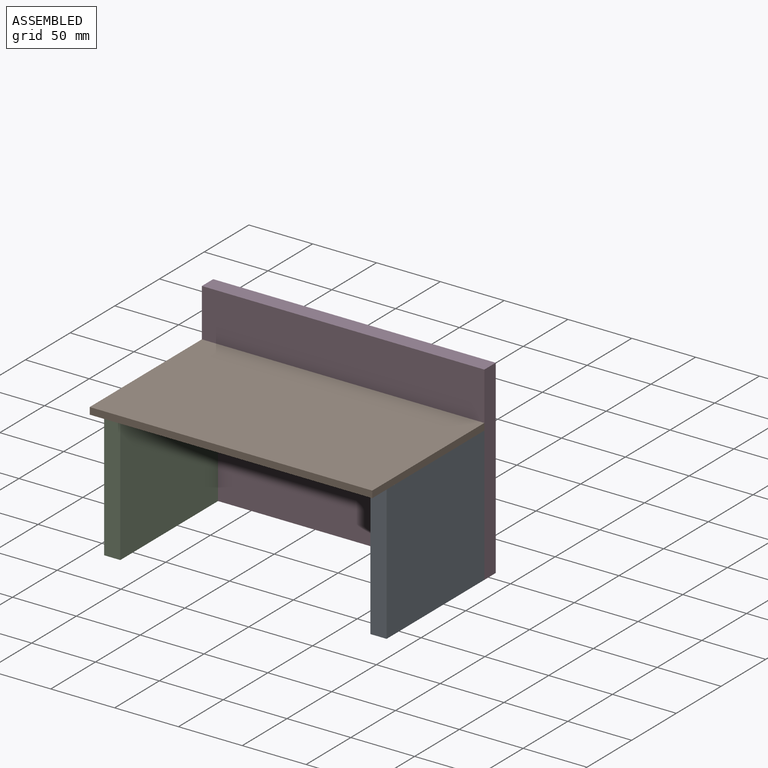
[diagram: assembled view]
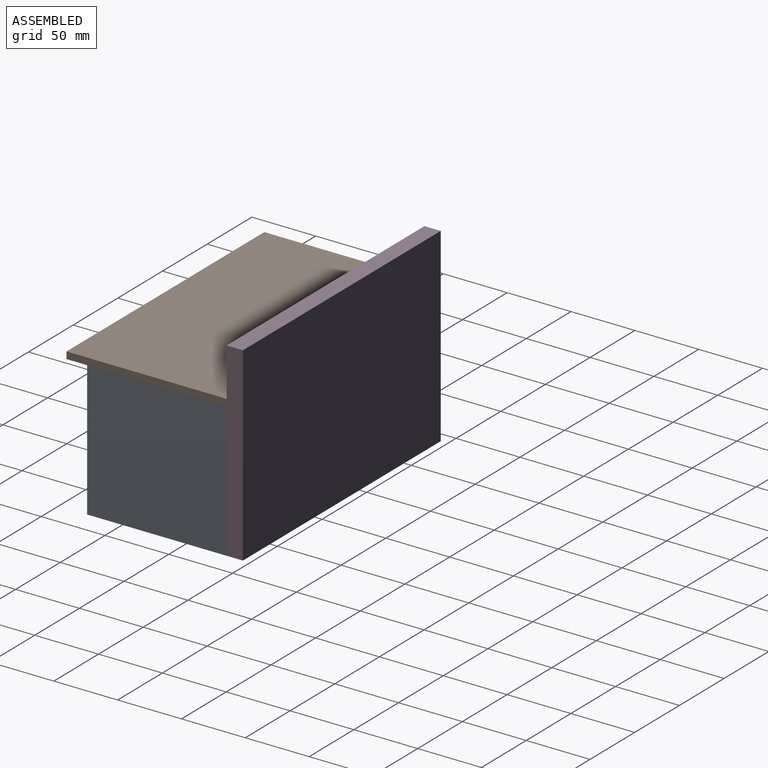
[diagram: assembled view, second angle]
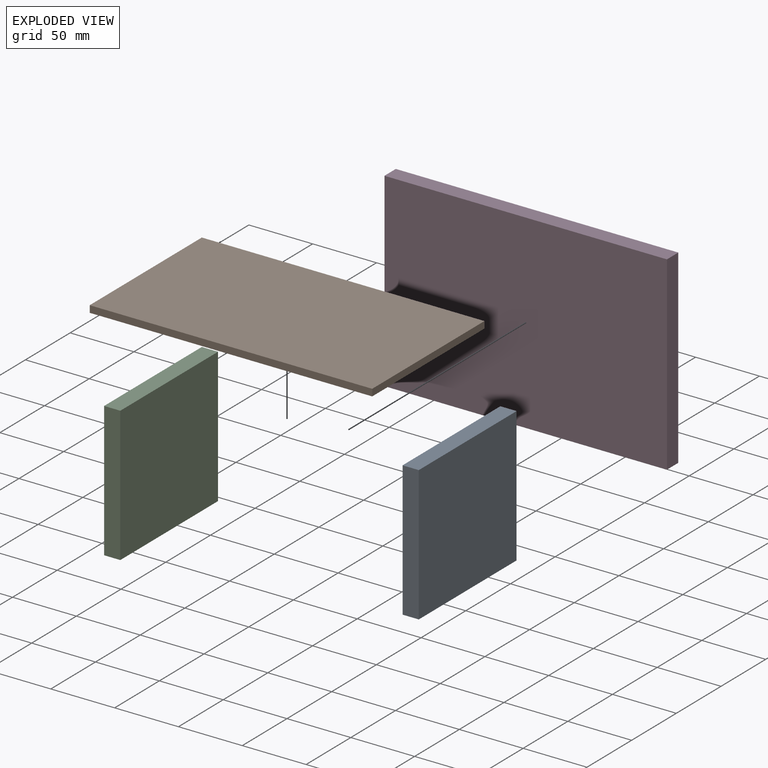
[diagram: exploded view]
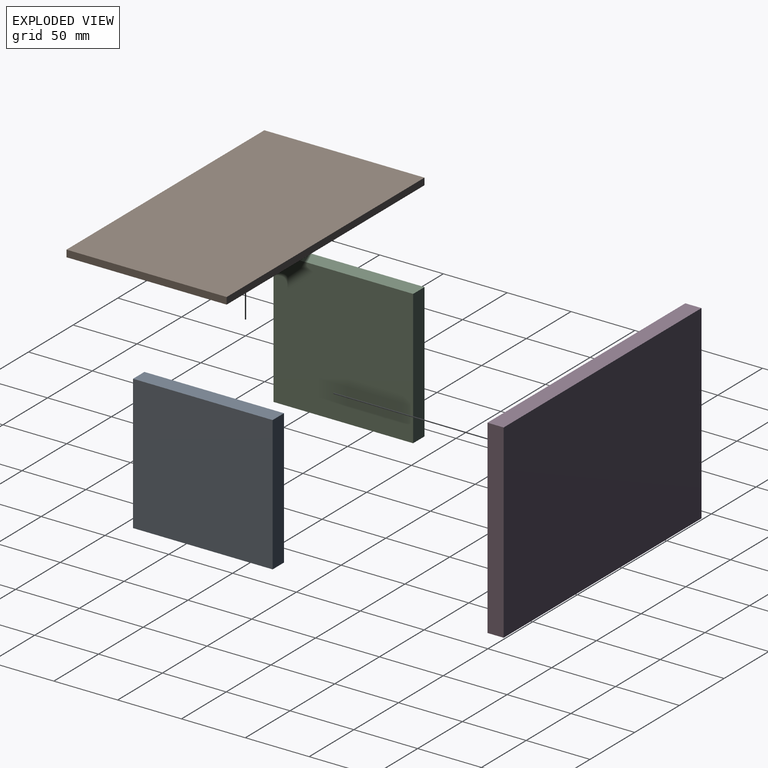
[diagram: exploded view, second angle]
ASSEMBLY  parts=4 mates=3
PART A: 6 faces, bbox 109.4x12.7x105.7 mm
  f0: plane 109.35x12.7mm, normal (0,0,1), area 1388.8mm2, adj f1,f3,f4,f5
  f1: plane 105.73x12.7mm, normal (-1,0,0), area 1342.8mm2, adj f0,f2,f4,f5
  f2: plane 109.35x12.7mm, normal (0,0,-1), area 1388.8mm2, adj f1,f3,f4,f5
  f3: plane 105.73x12.7mm, normal (1,0,0), area 1342.8mm2, adj f0,f2,f4,f5
  f4: plane 109.35x105.73mm, normal (0,-1,0), area 11561.6mm2, adj f0,f1,f2,f3
  f5: plane 109.35x105.73mm, normal (0,1,0), area 11561.6mm2, adj f0,f1,f2,f3
PART B: 6 faces, bbox 125.5x221.3x5.4 mm
  f0: plane 221.32x125.46mm, normal (0,0,1), area 27767.3mm2, adj f1,f3,f4,f5
  f1: plane 221.32x5.39mm, normal (-1,0,0), area 1192.4mm2, adj f0,f2,f3,f4
  f2: plane 221.32x125.46mm, normal (0,0,-1), area 27767.3mm2, adj f1,f3,f4,f5
  f3: plane 125.46x5.39mm, normal (0,-1,0), area 676mm2, adj f0,f1,f2,f5
  f4: plane 125.46x5.39mm, normal (0,1,0), area 676mm2, adj f0,f1,f2,f5
  f5: plane 221.32x5.39mm, normal (1,0,0), area 1192.4mm2, adj f0,f2,f3,f4
PART C: same geometry as A
PART D: 6 faces, bbox 221.3x12.7x148.9 mm
  f0: plane 221.32x12.7mm, normal (0,0,1), area 2810.7mm2, adj f1,f3,f4,f5
  f1: plane 148.89x12.7mm, normal (-1,0,0), area 1890.9mm2, adj f0,f2,f4,f5
  f2: plane 221.32x12.7mm, normal (0,0,-1), area 2810.7mm2, adj f1,f3,f4,f5
  f3: plane 148.89x12.7mm, normal (1,0,0), area 1890.9mm2, adj f0,f2,f4,f5
  f4: plane 221.32x148.89mm, normal (0,-1,0), area 32951.7mm2, adj f0,f1,f2,f3
  f5: plane 221.32x148.89mm, normal (0,1,0), area 32951.7mm2, adj f0,f1,f2,f3
PLACE A rot(axis=(0,0,-1),90deg) t=(138.48,-62.99,-81.96)mm
PLACE B rot(axis=(0,0,1),90deg) t=(-82.84,-76.2,-81.51)mm
PLACE C rot(axis=(0,0,-1),90deg) t=(-70.14,-62.99,-81.96)mm
PLACE D at identity
MATE fastened B.f2 <-> C.f0  axis (0,0,-1) through (-82.84,-12.7,-43.16)mm
MATE fastened C.f1 <-> D.f4  axis (0,1,0) through (-82.84,-12.7,-148.89)mm
MATE fastened A.f1 <-> D.f4  axis (0,1,0) through (138.48,-12.7,-148.89)mm
